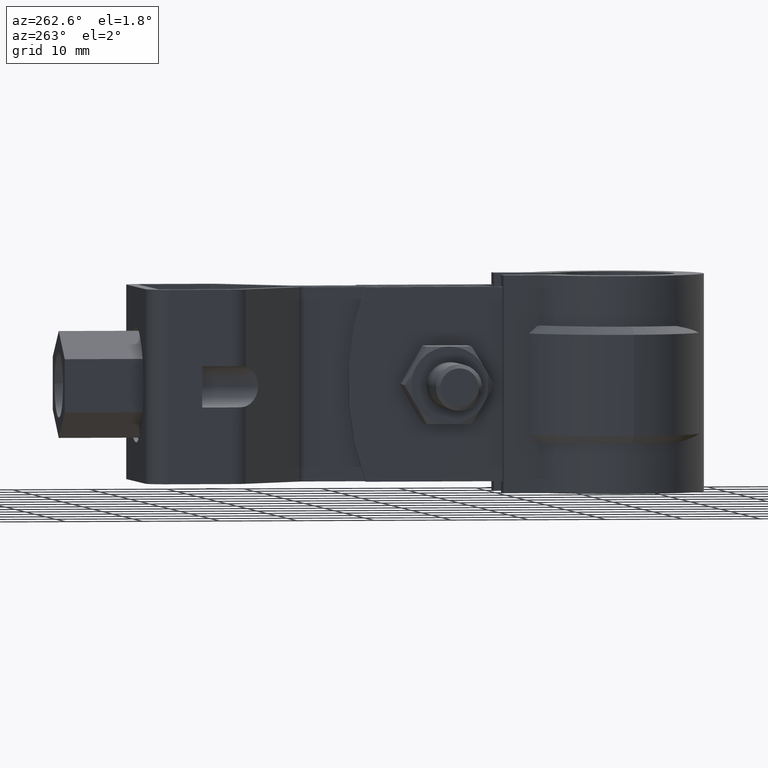
[diagram: clean part render]
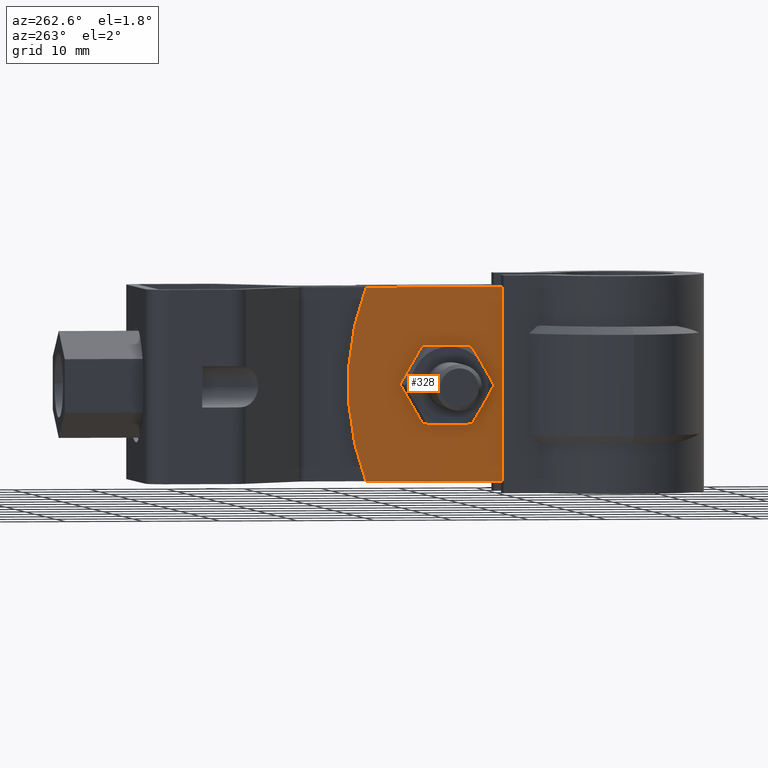
[diagram: same view with one face highlighted and labeled with its STEP entity id]
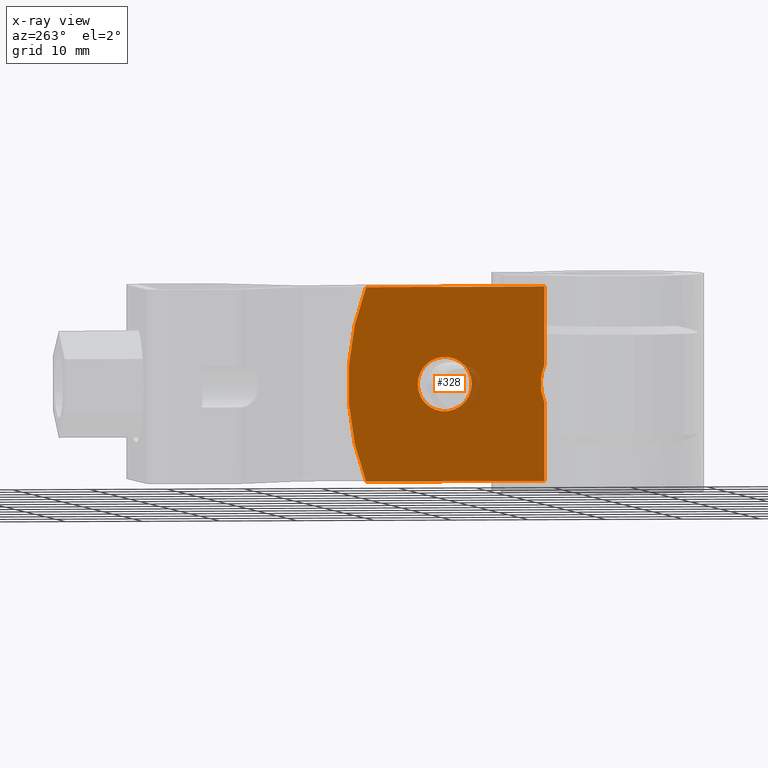
[diagram: x-ray of the same camera — body ghosted, the highlighted face saturated]
A machine part, auxiliary view. The second image highlights one B-rep face of the part: STEP entity #328.
The next image is the same camera in x-ray: the body ghosted, the highlighted face saturated — about 1% of this face is hidden behind the body in this view.
In plain terms, the highlighted planar face has unit normal (1, -0, 0).
Its self-contained STEP definition (entity closure, byte-faithful):
#328 = ADVANCED_FACE( '', ( #554, #555 ), #556, .F. );
#554 = FACE_OUTER_BOUND( '', #1004, .T. );
#555 = FACE_BOUND( '', #1005, .T. );
#556 = PLANE( '', #1006 );
#1004 = EDGE_LOOP( '', ( #2429, #2430, #2431, #2432, #2433, #2434 ) );
#1005 = EDGE_LOOP( '', ( #2435 ) );
#1006 = AXIS2_PLACEMENT_3D( '', #2436, #2437, #2438 );
#2429 = ORIENTED_EDGE( '', *, *, #4759, .F. );
#2430 = ORIENTED_EDGE( '', *, *, #4738, .T. );
#2431 = ORIENTED_EDGE( '', *, *, #4747, .F. );
#2432 = ORIENTED_EDGE( '', *, *, #4711, .F. );
#2433 = ORIENTED_EDGE( '', *, *, #4760, .F. );
#2434 = ORIENTED_EDGE( '', *, *, #4761, .T. );
#2435 = ORIENTED_EDGE( '', *, *, #4762, .F. );
#2436 = CARTESIAN_POINT( '', ( -5.10000000000000, 34.9554761014034, 0.000000000000000 ) );
#2437 = DIRECTION( '', ( 1.00000000000000, -6.12303176911189E-017, 0.000000000000000 ) );
#2438 = DIRECTION( '', ( -6.12303176911189E-017, -1.00000000000000, 0.000000000000000 ) );
#4711 = EDGE_CURVE( '', #5309, #5312, #5313, .T. );
#4738 = EDGE_CURVE( '', #5361, #5359, #5362, .T. );
#4747 = EDGE_CURVE( '', #5312, #5359, #5375, .T. );
#4759 = EDGE_CURVE( '', #5361, #5395, #5396, .T. );
#4760 = EDGE_CURVE( '', #5397, #5309, #5398, .T. );
#4761 = EDGE_CURVE( '', #5397, #5395, #5399, .T. );
#4762 = EDGE_CURVE( '', #5400, #5400, #5401, .F. );
#5309 = VERTEX_POINT( '', #6376 );
#5312 = VERTEX_POINT( '', #6380 );
#5313 = LINE( '', #6381, #6382 );
#5359 = VERTEX_POINT( '', #6589 );
#5361 = VERTEX_POINT( '', #6600 );
#5362 = B_SPLINE_CURVE_WITH_KNOTS( '', 3, ( #6601, #6602, #6603, #6604, #6605, #6606, #6607, #6608, #6609, #6610 ), .UNSPECIFIED., .F., .F., ( 4, 2, 2, 2, 4 ), ( 7.15244812269100E-018, 0.00122789731250400, 0.00245579462500799, 0.00368369193751199, 0.00491158925001598 ), .UNSPECIFIED. );
#5375 = LINE( '', #6705, #6706 );
#5395 = VERTEX_POINT( '', #6735 );
#5396 = LINE( '', #6736, #6737 );
#5397 = VERTEX_POINT( '', #6738 );
#5398 = CIRCLE( '', #6739, 35.0000000000000 );
#5399 = LINE( '', #6740, #6741 );
#5400 = VERTEX_POINT( '', #6742 );
#5401 = CIRCLE( '', #6743, 3.50000000000000 );
#6376 = CARTESIAN_POINT( '', ( -5.10000000000001, 32.6472181779584, 0.000000000000000 ) );
#6380 = CARTESIAN_POINT( '', ( -5.10000000000000, 9.54618248306622, 0.000000000000000 ) );
#6381 = CARTESIAN_POINT( '', ( -5.10000000000000, 34.9554761014034, 0.000000000000000 ) );
#6382 = VECTOR( '', #8971, 1000.00000000000 );
#6589 = CARTESIAN_POINT( '', ( -5.10000000000000, 9.54618248306622, -10.0862815752053 ) );
#6600 = CARTESIAN_POINT( '', ( -5.10000000000134, 9.54618248306873, -14.9137184247777 ) );
#6601 = CARTESIAN_POINT( '', ( -5.10000000000134, 9.54618248306872, -14.9137184247777 ) );
#6602 = CARTESIAN_POINT( '', ( -5.10000000000134, 9.70232047986235, -14.5265834008821 ) );
#6603 = CARTESIAN_POINT( '', ( -5.09999999999994, 9.81833738479455, -14.1319153410875 ) );
#6604 = CARTESIAN_POINT( '', ( -5.09999999999994, 9.97519419553914, -13.3284641760978 ) );
#6605 = CARTESIAN_POINT( '', ( -5.10000000000000, 10.0160405807235, -12.9196822874533 ) );
#6606 = CARTESIAN_POINT( '', ( -5.10000000000000, 10.0164716174223, -12.0868610102176 ) );
#6607 = CARTESIAN_POINT( '', ( -5.10000000000000, 9.97563247072718, -11.6743576351292 ) );
#6608 = CARTESIAN_POINT( '', ( -5.10000000000000, 9.81856702656952, -10.8686864948612 ) );
#6609 = CARTESIAN_POINT( '', ( -5.10000000000001, 9.70233662319661, -10.4734566255567 ) );
#6610 = CARTESIAN_POINT( '', ( -5.10000000000001, 9.54618248306622, -10.0862815752053 ) );
#6705 = CARTESIAN_POINT( '', ( -5.10000000000000, 9.54618248306622, 0.000000000000000 ) );
#6706 = VECTOR( '', #9000, 1000.00000000000 );
#6735 = CARTESIAN_POINT( '', ( -5.10000000000000, 9.54618248306622, -25.0000000000000 ) );
#6736 = CARTESIAN_POINT( '', ( -5.10000000000000, 9.54618248306622, 0.000000000000000 ) );
#6737 = VECTOR( '', #9021, 1000.00000000000 );
#6738 = CARTESIAN_POINT( '', ( -5.10000000000001, 32.6472181779584, -25.0000000000000 ) );
#6739 = AXIS2_PLACEMENT_3D( '', #9022, #9023, #9024 );
#6740 = CARTESIAN_POINT( '', ( -5.10000000000000, 34.9554761014034, -25.0000000000000 ) );
#6741 = VECTOR( '', #9025, 1000.00000000000 );
#6742 = CARTESIAN_POINT( '', ( -5.10000000000000, 25.9554761014034, -12.5000000000000 ) );
#6743 = AXIS2_PLACEMENT_3D( '', #9026, #9027, #9028 );
#8971 = DIRECTION( '', ( -6.12303176911189E-017, -1.00000000000000, 0.000000000000000 ) );
#9000 = DIRECTION( '', ( 0.000000000000000, 0.000000000000000, -1.00000000000000 ) );
#9021 = DIRECTION( '', ( 0.000000000000000, 0.000000000000000, -1.00000000000000 ) );
#9022 = CARTESIAN_POINT( '', ( -5.10000000000000, -0.0445238985966496, -12.5000000000000 ) );
#9023 = DIRECTION( '', ( 1.00000000000000, -6.12303176911189E-017, 0.000000000000000 ) );
#9024 = DIRECTION( '', ( 6.12303176911189E-017, 1.00000000000000, 0.000000000000000 ) );
#9025 = DIRECTION( '', ( -6.12303176911189E-017, -1.00000000000000, 0.000000000000000 ) );
#9026 = CARTESIAN_POINT( '', ( -5.10000000000000, 22.4554761014034, -12.5000000000000 ) );
#9027 = DIRECTION( '', ( 1.00000000000000, -6.12303176911189E-017, 0.000000000000000 ) );
#9028 = DIRECTION( '', ( 6.12303176911189E-017, 1.00000000000000, 0.000000000000000 ) );